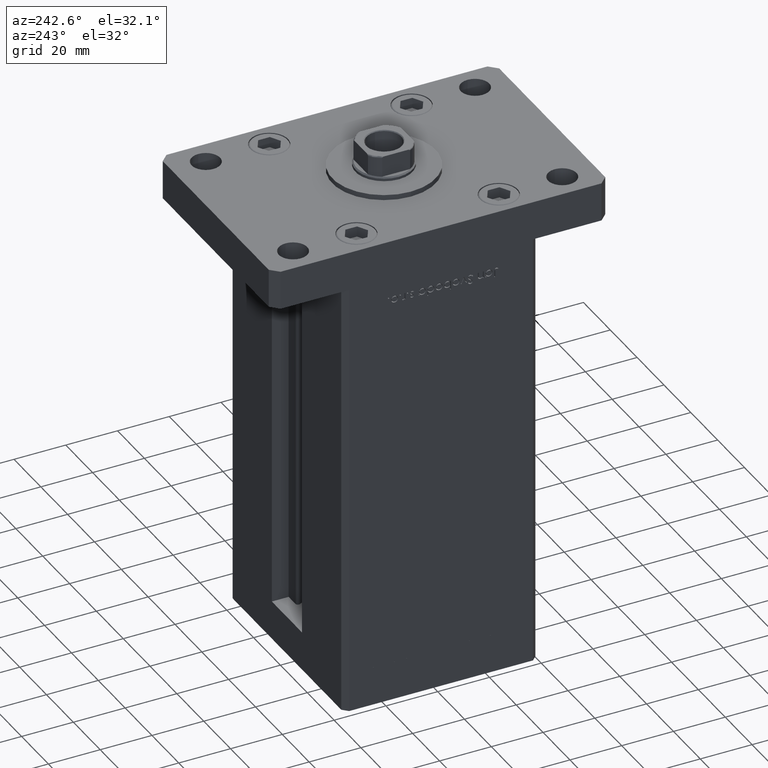
[diagram: clean part render]
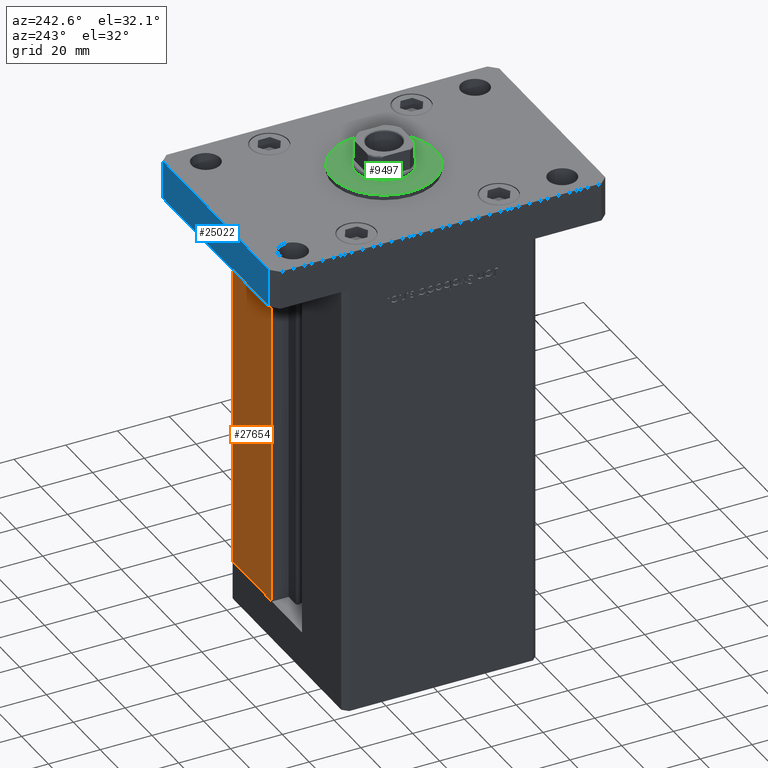
[diagram: same view with three faces highlighted in distinct colors, each labeled with its STEP entity id]
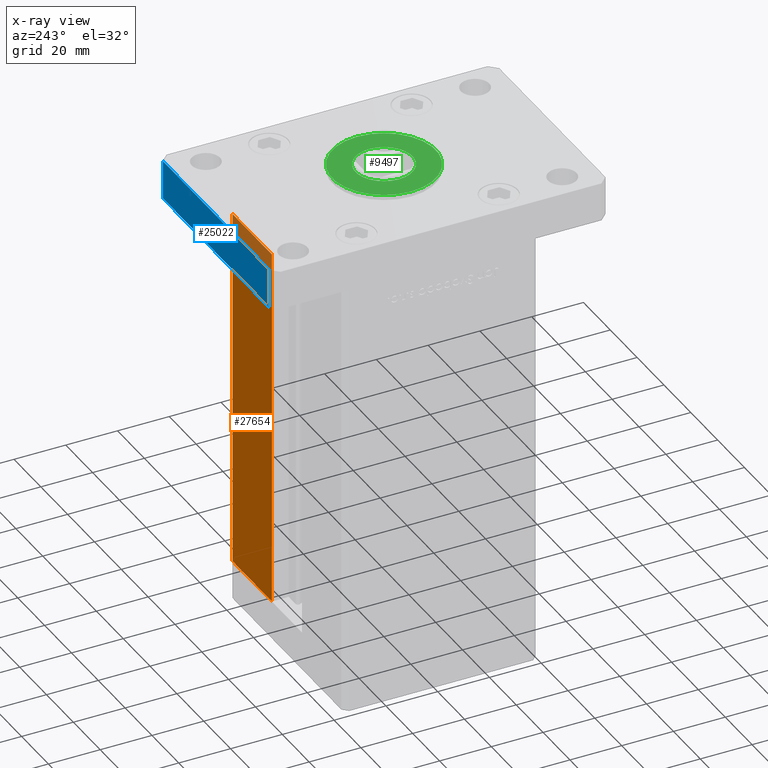
[diagram: x-ray of the same camera — body ghosted, the three highlighted faces saturated]
A machine part, auxiliary view with three faces highlighted in distinct colors.
The next image is the same camera in x-ray (body ghosted, the three faces saturated) — at least one of them is partly hidden behind the body in this view.
Their STEP definitions:

[orange] entity #27654 — the highlighted planar face has unit normal (-0, -1, 0).
#432 = CARTESIAN_POINT ( 'NONE',  ( 11.25000000000000000, 37.50000000000000000, 0.000000000000000000 ) ) ;
#1608 = VERTEX_POINT ( 'NONE', #29037 ) ;
#4436 = DIRECTION ( 'NONE',  ( -0.000000000000000000, -0.000000000000000000, -1.000000000000000000 ) ) ;
#5164 = ORIENTED_EDGE ( 'NONE', *, *, #35130, .T. ) ;
#5949 = CARTESIAN_POINT ( 'NONE',  ( 11.24999999999999289, 37.50000000000000000, 140.5000000000000000 ) ) ;
#6737 = CARTESIAN_POINT ( 'NONE',  ( -11.25000000000000000, 37.50000000000000000, 140.5000000000000000 ) ) ;
#8246 = CARTESIAN_POINT ( 'NONE',  ( 40.50000000000000000, 37.50000000000000711, 140.5000000000000000 ) ) ;
#10544 = DIRECTION ( 'NONE',  ( -2.372271420139223331E-16, -1.000000000000000000, 0.000000000000000000 ) ) ;
#18420 = LINE ( 'NONE', #432, #27751 ) ;
#18926 = FACE_OUTER_BOUND ( 'NONE', #37622, .T. ) ;
#18929 = DIRECTION ( 'NONE',  ( 1.000000000000000000, 0.000000000000000000, 0.000000000000000000 ) ) ;
#19840 = DIRECTION ( 'NONE',  ( -1.000000000000000000, 2.372271420139223331E-16, 0.000000000000000000 ) ) ;
#22628 = CARTESIAN_POINT ( 'NONE',  ( -11.25000000000000000, 37.50000000000000000, 0.000000000000000000 ) ) ;
#23039 = VERTEX_POINT ( 'NONE', #37392 ) ;
#23546 = EDGE_CURVE ( 'NONE', #1608, #23039, #48947, .T. ) ;
#26697 = LINE ( 'NONE', #22628, #47162 ) ;
#27654 = ADVANCED_FACE ( 'NONE', ( #18926 ), #44171, .F. ) ;
#27751 = VECTOR ( 'NONE', #31975, 1000.000000000000000 ) ;
#29037 = CARTESIAN_POINT ( 'NONE',  ( 40.50000000000000000, 37.50000000000000711, 140.5000000000000000 ) ) ;
#31427 = LINE ( 'NONE', #39565, #32532 ) ;
#31975 = DIRECTION ( 'NONE',  ( -0.000000000000000000, -0.000000000000000000, 1.000000000000000000 ) ) ;
#32532 = VECTOR ( 'NONE', #18929, 1000.000000000000000 ) ;
#33038 = EDGE_CURVE ( 'NONE', #23039, #51210, #26697, .T. ) ;
#35130 = EDGE_CURVE ( 'NONE', #50289, #1608, #31427, .T. ) ;
#35266 = ORIENTED_EDGE ( 'NONE', *, *, #33038, .T. ) ;
#35721 = VECTOR ( 'NONE', #4436, 1000.000000000000000 ) ;
#36956 = ORIENTED_EDGE ( 'NONE', *, *, #23546, .T. ) ;
#37392 = CARTESIAN_POINT ( 'NONE',  ( 40.50000000000000000, 37.50000000000000711, 0.000000000000000000 ) ) ;
#37428 = ORIENTED_EDGE ( 'NONE', *, *, #50417, .T. ) ;
#37622 = EDGE_LOOP ( 'NONE', ( #35266, #37428, #5164, #36956 ) ) ;
#39565 = CARTESIAN_POINT ( 'NONE',  ( -11.25000000000000000, 37.50000000000000000, 140.5000000000000000 ) ) ;
#44171 = PLANE ( 'NONE',  #45444 ) ;
#45444 = AXIS2_PLACEMENT_3D ( 'NONE', #6737, #10544, #47419 ) ;
#47162 = VECTOR ( 'NONE', #19840, 1000.000000000000000 ) ;
#47419 = DIRECTION ( 'NONE',  ( 1.000000000000000000, -2.372271420139223331E-16, 0.000000000000000000 ) ) ;
#48947 = LINE ( 'NONE', #8246, #35721 ) ;
#50289 = VERTEX_POINT ( 'NONE', #5949 ) ;
#50417 = EDGE_CURVE ( 'NONE', #51210, #50289, #18420, .T. ) ;
#51210 = VERTEX_POINT ( 'NONE', #51778 ) ;
#51778 = CARTESIAN_POINT ( 'NONE',  ( 11.25000000000000000, 37.50000000000000000, 0.000000000000000000 ) ) ;

[blue] entity #25022 — the highlighted planar face has unit normal (0, -1, 0).
#1991 = CARTESIAN_POINT ( 'NONE',  ( -39.50000000000003553, 65.00000000000000000, 15.00000000000000000 ) ) ;
#2417 = DIRECTION ( 'NONE',  ( -0.000000000000000000, -0.000000000000000000, -1.000000000000000000 ) ) ;
#3706 = VECTOR ( 'NONE', #18518, 1000.000000000000000 ) ;
#4132 = EDGE_CURVE ( 'NONE', #8528, #12634, #15046, .T. ) ;
#4479 = EDGE_CURVE ( 'NONE', #12634, #39891, #26642, .T. ) ;
#8356 = EDGE_CURVE ( 'NONE', #43913, #39891, #19937, .T. ) ;
#8528 = VERTEX_POINT ( 'NONE', #38416 ) ;
#12065 = CARTESIAN_POINT ( 'NONE',  ( 39.50000000000002842, 65.00000000000002842, 15.00000000000000000 ) ) ;
#12634 = VERTEX_POINT ( 'NONE', #42705 ) ;
#14646 = ORIENTED_EDGE ( 'NONE', *, *, #52884, .T. ) ;
#15046 = LINE ( 'NONE', #12065, #37453 ) ;
#16723 = ORIENTED_EDGE ( 'NONE', *, *, #4132, .F. ) ;
#18518 = DIRECTION ( 'NONE',  ( -0.000000000000000000, -0.000000000000000000, -1.000000000000000000 ) ) ;
#19212 = LINE ( 'NONE', #26803, #30466 ) ;
#19937 = LINE ( 'NONE', #32699, #22663 ) ;
#22663 = VECTOR ( 'NONE', #31893, 1000.000000000000000 ) ;
#23723 = DIRECTION ( 'NONE',  ( -1.000000000000000000, -3.513364001978340512E-16, 0.000000000000000000 ) ) ;
#25022 = ADVANCED_FACE ( 'NONE', ( #28593 ), #53033, .F. ) ;
#26642 = LINE ( 'NONE', #1991, #3706 ) ;
#26803 = CARTESIAN_POINT ( 'NONE',  ( 39.50000000000002842, 65.00000000000002842, 15.00000000000000000 ) ) ;
#28593 = FACE_OUTER_BOUND ( 'NONE', #40295, .T. ) ;
#30466 = VECTOR ( 'NONE', #2417, 1000.000000000000000 ) ;
#31893 = DIRECTION ( 'NONE',  ( -1.000000000000000000, -3.513364001978340512E-16, 0.000000000000000000 ) ) ;
#32353 = AXIS2_PLACEMENT_3D ( 'NONE', #36483, #32936, #49760 ) ;
#32699 = CARTESIAN_POINT ( 'NONE',  ( 39.50000000000002842, 65.00000000000002842, 0.000000000000000000 ) ) ;
#32936 = DIRECTION ( 'NONE',  ( 3.513364001978341005E-16, -1.000000000000000000, 0.000000000000000000 ) ) ;
#34748 = CARTESIAN_POINT ( 'NONE',  ( 39.50000000000002842, 65.00000000000002842, 0.000000000000000000 ) ) ;
#36298 = ORIENTED_EDGE ( 'NONE', *, *, #4479, .F. ) ;
#36483 = CARTESIAN_POINT ( 'NONE',  ( 39.50000000000002842, 65.00000000000002842, 15.00000000000000000 ) ) ;
#37453 = VECTOR ( 'NONE', #23723, 1000.000000000000000 ) ;
#37616 = CARTESIAN_POINT ( 'NONE',  ( -39.50000000000003553, 65.00000000000000000, 0.000000000000000000 ) ) ;
#38416 = CARTESIAN_POINT ( 'NONE',  ( 39.50000000000002842, 65.00000000000002842, 15.00000000000000000 ) ) ;
#39891 = VERTEX_POINT ( 'NONE', #37616 ) ;
#40295 = EDGE_LOOP ( 'NONE', ( #40358, #36298, #16723, #14646 ) ) ;
#40358 = ORIENTED_EDGE ( 'NONE', *, *, #8356, .T. ) ;
#42705 = CARTESIAN_POINT ( 'NONE',  ( -39.50000000000003553, 65.00000000000000000, 15.00000000000000000 ) ) ;
#43913 = VERTEX_POINT ( 'NONE', #34748 ) ;
#49760 = DIRECTION ( 'NONE',  ( 1.000000000000000000, 3.513364001978341005E-16, 0.000000000000000000 ) ) ;
#52884 = EDGE_CURVE ( 'NONE', #8528, #43913, #19212, .T. ) ;
#53033 = PLANE ( 'NONE',  #32353 ) ;

[green] entity #9497 — the highlighted planar face has unit normal (0, 0, 1).
#76 = CARTESIAN_POINT ( 'NONE',  ( 0.000000000000000000, 0.000000000000000000, 17.00000000000000000 ) ) ;
#1390 = DIRECTION ( 'NONE',  ( 0.000000000000000000, 0.000000000000000000, 1.000000000000000000 ) ) ;
#2891 = CARTESIAN_POINT ( 'NONE',  ( 0.000000000000000000, 0.000000000000000000, 17.00000000000000000 ) ) ;
#3933 = ORIENTED_EDGE ( 'NONE', *, *, #4454, .F. ) ;
#4454 = EDGE_CURVE ( 'NONE', #46493, #11372, #52209, .T. ) ;
#5388 = CARTESIAN_POINT ( 'NONE',  ( 11.00000000000000000, 0.000000000000000000, 17.00000000000000000 ) ) ;
#6402 = FACE_BOUND ( 'NONE', #36482, .T. ) ;
#8216 = DIRECTION ( 'NONE',  ( 1.000000000000000000, 0.000000000000000000, 0.000000000000000000 ) ) ;
#9497 = ADVANCED_FACE ( 'NONE', ( #6402, #11007 ), #52512, .T. ) ;
#11007 = FACE_OUTER_BOUND ( 'NONE', #29920, .T. ) ;
#11372 = VERTEX_POINT ( 'NONE', #22382 ) ;
#13916 = DIRECTION ( 'NONE',  ( 1.000000000000000000, 0.000000000000000000, 0.000000000000000000 ) ) ;
#15888 = EDGE_CURVE ( 'NONE', #50643, #46223, #42407, .T. ) ;
#17397 = ORIENTED_EDGE ( 'NONE', *, *, #28867, .F. ) ;
#19005 = AXIS2_PLACEMENT_3D ( 'NONE', #21703, #1390, #38550 ) ;
#19443 = AXIS2_PLACEMENT_3D ( 'NONE', #76, #53512, #8216 ) ;
#21703 = CARTESIAN_POINT ( 'NONE',  ( 0.000000000000000000, 0.000000000000000000, 17.00000000000000000 ) ) ;
#22382 = CARTESIAN_POINT ( 'NONE',  ( -11.00000000000000000, 1.347111479062088405E-15, 17.00000000000000000 ) ) ;
#25616 = CARTESIAN_POINT ( 'NONE',  ( 20.00000000000000000, 2.449293598294706513E-15, 17.00000000000000000 ) ) ;
#27534 = DIRECTION ( 'NONE',  ( 1.000000000000000000, 0.000000000000000000, -0.000000000000000000 ) ) ;
#28867 = EDGE_CURVE ( 'NONE', #11372, #46493, #37653, .T. ) ;
#29228 = EDGE_CURVE ( 'NONE', #46223, #50643, #33313, .T. ) ;
#29449 = ORIENTED_EDGE ( 'NONE', *, *, #15888, .T. ) ;
#29920 = EDGE_LOOP ( 'NONE', ( #39709, #29449 ) ) ;
#33313 = CIRCLE ( 'NONE', #19443, 20.00000000000000000 ) ;
#36482 = EDGE_LOOP ( 'NONE', ( #3933, #17397 ) ) ;
#36809 = AXIS2_PLACEMENT_3D ( 'NONE', #40032, #48436, #39750 ) ;
#37653 = CIRCLE ( 'NONE', #36809, 11.00000000000000000 ) ;
#38550 = DIRECTION ( 'NONE',  ( 1.000000000000000000, 0.000000000000000000, 0.000000000000000000 ) ) ;
#38616 = DIRECTION ( 'NONE',  ( 0.000000000000000000, 0.000000000000000000, 1.000000000000000000 ) ) ;
#39709 = ORIENTED_EDGE ( 'NONE', *, *, #29228, .T. ) ;
#39750 = DIRECTION ( 'NONE',  ( 1.000000000000000000, 0.000000000000000000, 0.000000000000000000 ) ) ;
#40032 = CARTESIAN_POINT ( 'NONE',  ( 0.000000000000000000, 0.000000000000000000, 17.00000000000000000 ) ) ;
#42407 = CIRCLE ( 'NONE', #19005, 20.00000000000000000 ) ;
#42608 = CARTESIAN_POINT ( 'NONE',  ( -20.00000000000000000, 0.000000000000000000, 17.00000000000000000 ) ) ;
#45284 = AXIS2_PLACEMENT_3D ( 'NONE', #47275, #38616, #13916 ) ;
#46223 = VERTEX_POINT ( 'NONE', #42608 ) ;
#46493 = VERTEX_POINT ( 'NONE', #5388 ) ;
#47275 = CARTESIAN_POINT ( 'NONE',  ( 0.000000000000000000, 0.000000000000000000, 17.00000000000000000 ) ) ;
#48436 = DIRECTION ( 'NONE',  ( 0.000000000000000000, 0.000000000000000000, 1.000000000000000000 ) ) ;
#50643 = VERTEX_POINT ( 'NONE', #25616 ) ;
#51691 = DIRECTION ( 'NONE',  ( 0.000000000000000000, 0.000000000000000000, 1.000000000000000000 ) ) ;
#51857 = AXIS2_PLACEMENT_3D ( 'NONE', #2891, #51691, #27534 ) ;
#52209 = CIRCLE ( 'NONE', #45284, 11.00000000000000000 ) ;
#52512 = PLANE ( 'NONE',  #51857 ) ;
#53512 = DIRECTION ( 'NONE',  ( 0.000000000000000000, 0.000000000000000000, 1.000000000000000000 ) ) ;